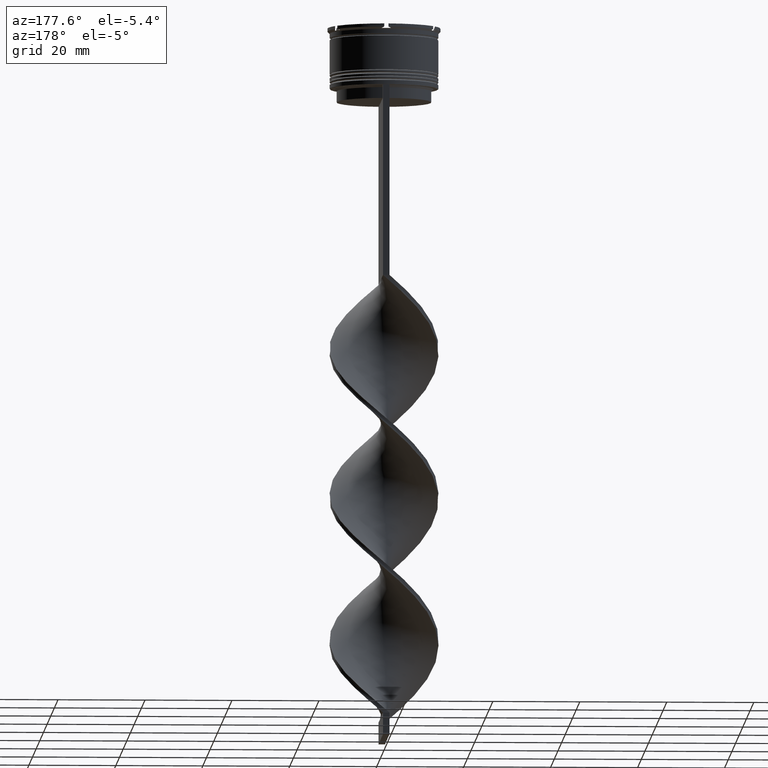
[diagram: clean part render]
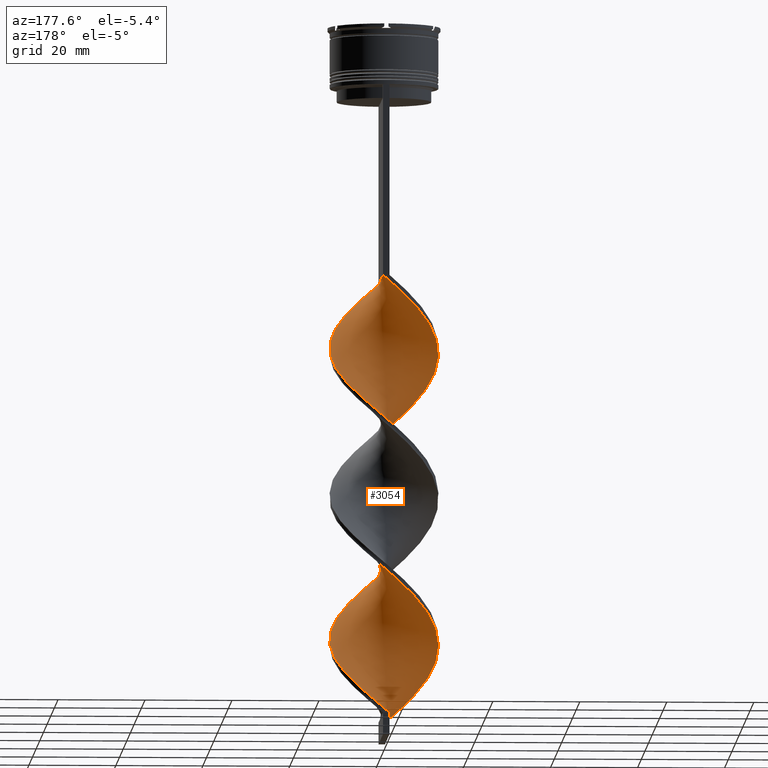
[diagram: same view with one face highlighted and labeled with its STEP entity id]
A machine part, auxiliary view. The second image highlights one B-rep face of the part: STEP entity #3054.
In plain terms, the highlighted face is a freeform B-spline surface patch.
Its self-contained STEP definition (entity closure, byte-faithful):
#9 = CARTESIAN_POINT ( 'NONE',  ( -1.865285434671644094, -12.38277877728589083, -123.0888888888888886 ) ) ;
#14 = CARTESIAN_POINT ( 'NONE',  ( 12.13740119476139867, -3.350863215071115953, -106.2555555555555742 ) ) ;
#15 = CARTESIAN_POINT ( 'NONE',  ( 12.13740119476140045, 3.350863215071107515, -77.07777777777778283 ) ) ;
#36 = CARTESIAN_POINT ( 'NONE',  ( 11.65644370790820972, 4.576004816908207928, -78.20000000000000284 ) ) ;
#39 = CARTESIAN_POINT ( 'NONE',  ( -10.61168328023406637, -6.777681757703948762, -148.8999999999999773 ) ) ;
#40 = CARTESIAN_POINT ( 'NONE',  ( 4.601210730723736653, -11.72065065856775767, -61.36666666666666003 ) ) ;
#51 = CARTESIAN_POINT ( 'NONE',  ( 0.7500000000000002220, -12.50000000000000000, -58.00000000000000000 ) ) ;
#56 = CARTESIAN_POINT ( 'NONE',  ( -6.937523532635169410, 10.50788081788356365, -97.27777777777778567 ) ) ;
#60 = CARTESIAN_POINT ( 'NONE',  ( 7.954078399437126023, -9.671873490467488566, -64.73333333333333428 ) ) ;
#66 = CARTESIAN_POINT ( 'NONE',  ( -11.65644370790820794, 4.576004816908208817, -71.46666666666668277 ) ) ;
#76 = CARTESIAN_POINT ( 'NONE',  ( 5.631329961908789983, 11.26201202755619768, -86.05555555555557135 ) ) ;
#88 = CARTESIAN_POINT ( 'NONE',  ( -12.11996919947063311, -3.149420042465476577, -78.20000000000000284 ) ) ;
#105 = CARTESIAN_POINT ( 'NONE',  ( -6.937523532635174739, -10.50788081788355832, -153.3888888888889142 ) ) ;
#106 = CARTESIAN_POINT ( 'NONE',  ( -0.7499999999999986677, 12.50000000000000000, -159.0000000000000000 ) ) ;
#125 = CARTESIAN_POINT ( 'NONE',  ( 5.769367131679453031, -11.11426573822566155, -129.8222222222222229 ) ) ;
#131 = CARTESIAN_POINT ( 'NONE',  ( -12.56885349454395495, 0.7541312096726383585, -74.83333333333334281 ) ) ;
#142 = CARTESIAN_POINT ( 'NONE',  ( -7.849775853840630369, -9.845090710256188871, -117.4777777777777885 ) ) ;
#149 = CARTESIAN_POINT ( 'NONE',  ( -0.7500000000000017764, -12.50000000000000000, -159.0000000000000000 ) ) ;
#155 = CARTESIAN_POINT ( 'NONE',  ( -1.865285434671636988, 12.38277877728589260, -60.24444444444444713 ) ) ;
#168 = CARTESIAN_POINT ( 'NONE',  ( 9.725148873555948370, 7.997891686931350108, -148.8999999999999773 ) ) ;
#173 = EDGE_CURVE ( 'NONE', #568, #2647, #1898, .T. ) ;
#225 = CARTESIAN_POINT ( 'NONE',  ( -12.45098658456435992, -1.875559948311561920, -144.4111111111111541 ) ) ;
#244 = CARTESIAN_POINT ( 'NONE',  ( -5.769367131679456584, -11.11426573822565977, -154.5111111111111200 ) ) ;
#248 = CARTESIAN_POINT ( 'NONE',  ( -7.849775853840621487, 9.845090710256194200, -65.85555555555555429 ) ) ;
#260 = B_SPLINE_CURVE_WITH_KNOTS ( 'NONE', 3,
 ( #323, #1896, #4128, #3509 ),
 .UNSPECIFIED., .F., .F.,
 ( 4, 4 ),
 ( 0.000000000000000000, 1.000000000000000000 ),
 .UNSPECIFIED. ) ;
#263 = CARTESIAN_POINT ( 'NONE',  ( 4.399048945215547235, -11.72437070283936400, -96.15555555555556566 ) ) ;
#266 = CARTESIAN_POINT ( 'NONE',  ( 5.769367131679463689, 11.11426573822565622, -120.8444444444444485 ) ) ;
#284 = CARTESIAN_POINT ( 'NONE',  ( -11.17548622105502254, 5.801146418745307898, -137.6777777777777487 ) ) ;
#287 = VECTOR ( 'NONE', #2635, 1000.000000000000000 ) ;
#289 = CARTESIAN_POINT ( 'NONE',  ( -9.725148873555948370, 7.997891686931351884, -68.10000000000000853 ) ) ;
#312 = CARTESIAN_POINT ( 'NONE',  ( -12.45098658456436169, 1.875559948311569691, -106.2555555555555742 ) ) ;
#315 = CARTESIAN_POINT ( 'NONE',  ( -5.631329961908784654, 11.26201202755620479, -63.61111111111112137 ) ) ;
#316 = CARTESIAN_POINT ( 'NONE',  ( -4.601210730723734876, 11.72065065856775945, -95.03333333333331723 ) ) ;
#323 = CARTESIAN_POINT ( 'NONE',  ( -0.7500000000000017764, -12.50000000000000000, -159.0000000000000000 ) ) ;
#329 = CARTESIAN_POINT ( 'NONE',  ( 7.849775853840625039, 9.845090710256194200, -83.81111111111111711 ) ) ;
#333 = CARTESIAN_POINT ( 'NONE',  ( -7.849775853840621487, 9.845090710256194200, -133.1888888888889255 ) ) ;
#334 = CARTESIAN_POINT ( 'NONE',  ( 12.11996919947063134, -3.149420042465478353, -71.46666666666668277 ) ) ;
#349 = CARTESIAN_POINT ( 'NONE',  ( 7.954078399437126023, -9.671873490467488566, -132.0666666666666629 ) ) ;
#354 = CARTESIAN_POINT ( 'NONE',  ( -12.45098658456435992, -1.875559948311561920, -144.4111111111111256 ) ) ;
#373 = CARTESIAN_POINT ( 'NONE',  ( 10.61168328023406815, -6.777681757703950538, -135.4333333333333371 ) ) ;
#376 = CARTESIAN_POINT ( 'NONE',  ( -7.954078399437126912, -9.671873490467486789, -152.2666666666666799 ) ) ;
#377 = CARTESIAN_POINT ( 'NONE',  ( 11.65644370790820972, 4.576004816908207928, -78.20000000000000284 ) ) ;
#393 = CARTESIAN_POINT ( 'NONE',  ( 4.399048945215554340, 11.72437070283936045, -87.17777777777779136 ) ) ;
#396 = CARTESIAN_POINT ( 'NONE',  ( -11.78895181437690276, -4.423280136619389680, -146.6555555555555657 ) ) ;
#397 = CARTESIAN_POINT ( 'NONE',  ( 11.20031754730548279, -5.600480947161672773, -69.22222222222222854 ) ) ;
#402 = CARTESIAN_POINT ( 'NONE',  ( -6.937523532635175627, -10.50788081788355832, -86.05555555555557135 ) ) ;
#414 = CARTESIAN_POINT ( 'NONE',  ( -5.769367131679456584, -11.11426573822565977, -154.5111111111111200 ) ) ;
#415 = CARTESIAN_POINT ( 'NONE',  ( -6.740552907874707067, -10.55355136890619860, -118.6000000000000085 ) ) ;
#448 = CARTESIAN_POINT ( 'NONE',  ( -9.725148873555946594, 7.997891686931353661, -68.10000000000002274 ) ) ;
#457 = EDGE_CURVE ( 'NONE', #2647, #3414, #3603, .T. ) ;
#461 = CARTESIAN_POINT ( 'NONE',  ( 6.937523532635171186, -10.50788081788356187, -130.9444444444444571 ) ) ;
#467 = CARTESIAN_POINT ( 'NONE',  ( 11.78895181437690454, 4.423280136619385239, -112.9888888888888943 ) ) ;
#480 = CARTESIAN_POINT ( 'NONE',  ( 10.45031754730548457, 6.899519052838327227, -147.7777777777777715 ) ) ;
#487 = CARTESIAN_POINT ( 'NONE',  ( -7.954078399437126912, -9.671873490467486789, -152.2666666666666799 ) ) ;
#506 = CARTESIAN_POINT ( 'NONE',  ( -10.45031754730548812, -6.899519052838321009, -114.1111111111111285 ) ) ;
#515 = ORIENTED_EDGE ( 'NONE', *, *, #3453, .F. ) ;
#563 = CARTESIAN_POINT ( 'NONE',  ( -12.35312734465267681, 2.052497212371875879, -141.0444444444444514 ) ) ;
#568 = VERTEX_POINT ( 'NONE', #2124 ) ;
#570 = CARTESIAN_POINT ( 'NONE',  ( -12.13740119476139867, 3.350863215071111512, -72.58888888888890278 ) ) ;
#584 = CARTESIAN_POINT ( 'NONE',  ( -6.937523532635175627, -10.50788081788355832, -153.3888888888889142 ) ) ;
#589 = CARTESIAN_POINT ( 'NONE',  ( -10.45031754730548279, 6.899519052838331667, -69.22222222222222854 ) ) ;
#602 = CARTESIAN_POINT ( 'NONE',  ( 12.45098658456436169, 1.875559948311554370, -110.7444444444444542 ) ) ;
#605 = CARTESIAN_POINT ( 'NONE',  ( 1.865285434671633880, -12.38277877728589260, -93.91111111111111143 ) ) ;
#624 = CARTESIAN_POINT ( 'NONE',  ( 12.35312734465267859, 2.052497212371872326, -75.95555555555554861 ) ) ;
#628 = CARTESIAN_POINT ( 'NONE',  ( -9.791158273236575837, -7.806773960377678456, -82.68888888888889710 ) ) ;
#630 = CARTESIAN_POINT ( 'NONE',  ( -11.20031754730548101, 5.600480947161677214, -102.8888888888888857 ) ) ;
#647 = CARTESIAN_POINT ( 'NONE',  ( -3.166767928522322251, -12.18672937812252499, -121.9666666666666544 ) ) ;
#650 = CARTESIAN_POINT ( 'NONE',  ( -7.954078399437126912, -9.671873490467486789, -84.93333333333333712 ) ) ;
#665 = CARTESIAN_POINT ( 'NONE',  ( -10.61168328023406637, 6.777681757703952314, -101.7666666666666515 ) ) ;
#670 = CARTESIAN_POINT ( 'NONE',  ( 6.937523532635171186, -10.50788081788356187, -63.61111111111112137 ) ) ;
#685 = CARTESIAN_POINT ( 'NONE',  ( -11.65644370790820972, -4.576004816908206152, -111.8666666666666742 ) ) ;
#690 = CARTESIAN_POINT ( 'NONE',  ( 9.791158273236570508, -7.806773960377682009, -66.97777777777777430 ) ) ;
#700 = CARTESIAN_POINT ( 'NONE',  ( 0.7500000000000002220, 12.50000000000000000, -58.00000000000000000 ) ) ;
#711 = CARTESIAN_POINT ( 'NONE',  ( -9.791158273236570508, 7.806773960377685562, -100.6444444444444599 ) ) ;
#716 = CARTESIAN_POINT ( 'NONE',  ( -3.332506835772342857, 12.07091124105925317, -93.91111111111111143 ) ) ;
#722 = CARTESIAN_POINT ( 'NONE',  ( -11.20031754730548457, -5.600480947161668333, -80.44444444444445708 ) ) ;
#730 = CARTESIAN_POINT ( 'NONE',  ( 4.399048945215554340, 11.72437070283936045, -154.5111111111111200 ) ) ;
#733 = CARTESIAN_POINT ( 'NONE',  ( -11.65644370790820794, 4.576004816908208817, -138.8000000000000114 ) ) ;
#734 = CARTESIAN_POINT ( 'NONE',  ( 5.631329961908789983, 11.26201202755619946, -153.3888888888889142 ) ) ;
#749 = CARTESIAN_POINT ( 'NONE',  ( -0.7499999999999986677, 12.50000000000000000, -159.0000000000000000 ) ) ;
#752 = CARTESIAN_POINT ( 'NONE',  ( 12.11996919947063134, -3.149420042465478353, -138.8000000000000114 ) ) ;
#761 = CARTESIAN_POINT ( 'NONE',  ( 0.7500000000000002220, 12.50000000000000000, -58.00000000000000000 ) ) ;
#778 = CARTESIAN_POINT ( 'NONE',  ( 4.601210730723736653, -11.72065065856775767, -128.7000000000000171 ) ) ;
#793 = CARTESIAN_POINT ( 'NONE',  ( 9.725148873555946594, 7.997891686931350996, -148.8999999999999488 ) ) ;
#803 = CARTESIAN_POINT ( 'NONE',  ( 0.7500000000000002220, 12.50000000000000000, -125.3333333333333570 ) ) ;
#817 = CARTESIAN_POINT ( 'NONE',  ( 7.849775853840625039, 9.845090710256192423, -151.1444444444444457 ) ) ;
#874 = CARTESIAN_POINT ( 'NONE',  ( 11.20031754730548812, 5.600480947161662115, -114.1111111111111285 ) ) ;
#877 = CARTESIAN_POINT ( 'NONE',  ( -2.063802940820959275, -12.42117182355074334, -90.54444444444445139 ) ) ;
#897 = CARTESIAN_POINT ( 'NONE',  ( 2.063802940820966825, 12.42117182355074334, -124.2111111111111370 ) ) ;
#902 = CARTESIAN_POINT ( 'NONE',  ( 11.20031754730548812, 5.600480947161662115, -114.1111111111111285 ) ) ;
#921 = CARTESIAN_POINT ( 'NONE',  ( -4.399048945215550788, 11.72437070283936222, -129.8222222222222229 ) ) ;
#924 = CARTESIAN_POINT ( 'NONE',  ( -0.7500000000000017764, -12.50000000000000000, -91.66666666666667140 ) ) ;
#939 = CARTESIAN_POINT ( 'NONE',  ( -10.45031754730548279, 6.899519052838331667, -136.5555555555555713 ) ) ;
#943 = CARTESIAN_POINT ( 'NONE',  ( -11.20031754730548457, -5.600480947161668333, -80.44444444444445708 ) ) ;
#944 = CARTESIAN_POINT ( 'NONE',  ( -0.7499999999999986677, 12.50000000000000000, -91.66666666666667140 ) ) ;
#959 = CARTESIAN_POINT ( 'NONE',  ( -4.399048945215561446, -11.72437070283935689, -120.8444444444444485 ) ) ;
#964 = CARTESIAN_POINT ( 'NONE',  ( 9.725148873555946594, -7.997891686931353661, -101.7666666666666515 ) ) ;
#966 = CARTESIAN_POINT ( 'NONE',  ( 10.45031754730548457, 6.899519052838327227, -80.44444444444445708 ) ) ;
#982 = CARTESIAN_POINT ( 'NONE',  ( 9.725148873555946594, 7.997891686931350996, -81.56666666666664867 ) ) ;
#985 = CARTESIAN_POINT ( 'NONE',  ( -12.56885349454395495, 0.7541312096726383585, -142.1666666666666856 ) ) ;
#986 = CARTESIAN_POINT ( 'NONE',  ( -12.56885349454395495, -0.7541312096726352499, -108.5000000000000000 ) ) ;
#995 = CARTESIAN_POINT ( 'NONE',  ( -0.7500000000000017764, -12.50000000000000000, -159.0000000000000000 ) ) ;
#1003 = CARTESIAN_POINT ( 'NONE',  ( -0.7499999999999986677, 12.50000000000000000, -91.66666666666667140 ) ) ;
#1007 = CARTESIAN_POINT ( 'NONE',  ( 11.78895181437690276, -4.423280136619393232, -70.34444444444444855 ) ) ;
#1022 = CARTESIAN_POINT ( 'NONE',  ( -2.063802940820951726, 12.42117182355074689, -92.78888888888889142 ) ) ;
#1028 = CARTESIAN_POINT ( 'NONE',  ( 1.865285434671642317, 12.38277877728589083, -89.42222222222223138 ) ) ;
#1037 = CARTESIAN_POINT ( 'NONE',  ( -9.791158273236575837, -7.806773960377678456, -82.68888888888889710 ) ) ;
#1047 = CARTESIAN_POINT ( 'NONE',  ( 12.35312734465267859, 2.052497212371872326, -143.2888888888889198 ) ) ;
#1096 = CARTESIAN_POINT ( 'NONE',  ( -12.45098658456435992, -1.875559948311561920, -77.07777777777778283 ) ) ;
#1119 = CARTESIAN_POINT ( 'NONE',  ( -3.166767928522319142, 12.18672937812252499, -128.6999999999999886 ) ) ;
#1129 = CARTESIAN_POINT ( 'NONE',  ( 1.865285434671642317, 12.38277877728589083, -156.7555555555555600 ) ) ;
#1133 = CARTESIAN_POINT ( 'NONE',  ( -1.865285434671644094, -12.38277877728589083, -123.0888888888888886 ) ) ;
#1185 = CARTESIAN_POINT ( 'NONE',  ( 6.937523532635172074, -10.50788081788356187, -63.61111111111111427 ) ) ;
#1201 = CARTESIAN_POINT ( 'NONE',  ( -4.601210730723739317, -11.72065065856775945, -155.6333333333333258 ) ) ;
#1204 = CARTESIAN_POINT ( 'NONE',  ( 12.35312734465267503, -2.052497212371882984, -107.3777777777777942 ) ) ;
#1229 = CARTESIAN_POINT ( 'NONE',  ( 10.61168328023406993, 6.777681757703947873, -115.2333333333333343 ) ) ;
#1234 = CARTESIAN_POINT ( 'NONE',  ( -0.5638029408209555005, 12.57882817644925844, -126.4555555555555770 ) ) ;
#1249 = CARTESIAN_POINT ( 'NONE',  ( -1.865285434671636988, 12.38277877728589260, -127.5777777777777828 ) ) ;
#1253 = CARTESIAN_POINT ( 'NONE',  ( -4.399048945215550788, 11.72437070283936222, -62.48888888888889426 ) ) ;
#1254 = CARTESIAN_POINT ( 'NONE',  ( -7.954078399437124247, 9.671873490467490342, -98.40000000000001990 ) ) ;
#1268 = CARTESIAN_POINT ( 'NONE',  ( -5.631329961908790871, -11.26201202755619768, -119.7222222222222143 ) ) ;
#1272 = CARTESIAN_POINT ( 'NONE',  ( 9.791158273236577614, 7.806773960377676680, -116.3555555555555685 ) ) ;
#1289 = CARTESIAN_POINT ( 'NONE',  ( 0.7500000000000002220, -12.50000000000000000, -125.3333333333333570 ) ) ;
#1294 = CARTESIAN_POINT ( 'NONE',  ( -12.35312734465267681, 2.052497212371875879, -73.71111111111112280 ) ) ;
#1296 = CARTESIAN_POINT ( 'NONE',  ( 6.740552907874705291, 10.55355136890619860, -84.93333333333333712 ) ) ;
#1314 = CARTESIAN_POINT ( 'NONE',  ( 12.13740119476140045, 3.350863215071107515, -77.07777777777778283 ) ) ;
#1317 = CARTESIAN_POINT ( 'NONE',  ( -4.601210730723738429, -11.72065065856775767, -155.6333333333333542 ) ) ;
#1319 = CARTESIAN_POINT ( 'NONE',  ( 8.970633266239079973, -8.835866163051415256, -65.85555555555555429 ) ) ;
#1335 = CARTESIAN_POINT ( 'NONE',  ( -12.11996919947063134, 3.149420042465479241, -105.1333333333333400 ) ) ;
#1339 = CARTESIAN_POINT ( 'NONE',  ( 3.166767928522320474, 12.18672937812252322, -88.29999999999998295 ) ) ;
#1345 = CARTESIAN_POINT ( 'NONE',  ( -12.35312734465267681, 2.052497212371875879, -73.71111111111112280 ) ) ;
#1356 = CARTESIAN_POINT ( 'NONE',  ( -3.332506835772342857, 12.07091124105925317, -93.91111111111111143 ) ) ;
#1370 = CARTESIAN_POINT ( 'NONE',  ( 1.865285434671633880, -12.38277877728589260, -93.91111111111111143 ) ) ;
#1383 = CARTESIAN_POINT ( 'NONE',  ( -12.13740119476139867, 3.350863215071111512, -139.9222222222222172 ) ) ;
#1384 = CARTESIAN_POINT ( 'NONE',  ( 3.332506835772345966, -12.07091124105925317, -127.5777777777777828 ) ) ;
#1402 = CARTESIAN_POINT ( 'NONE',  ( 11.65644370790820972, 4.576004816908207928, -145.5333333333333599 ) ) ;
#1409 = CARTESIAN_POINT ( 'NONE',  ( -1.865285434671636988, 12.38277877728589260, -60.24444444444444713 ) ) ;
#1421 = CARTESIAN_POINT ( 'NONE',  ( 2.063802940820955723, -12.42117182355074334, -126.4555555555555770 ) ) ;
#1428 = CARTESIAN_POINT ( 'NONE',  ( 0.7500000000000002220, -12.50000000000000000, -58.00000000000000000 ) ) ;
#1435 = CARTESIAN_POINT ( 'NONE',  ( -3.166767928522319142, 12.18672937812252322, -61.36666666666666003 ) ) ;
#1447 = CARTESIAN_POINT ( 'NONE',  ( 8.787462363698287149, 8.921491198593770378, -150.0222222222222115 ) ) ;
#1461 = CARTESIAN_POINT ( 'NONE',  ( 5.631329961908789983, 11.26201202755619768, -153.3888888888889142 ) ) ;
#1502 = CARTESIAN_POINT ( 'NONE',  ( 4.601210730723737541, -11.72065065856775945, -61.36666666666666003 ) ) ;
#1518 = CARTESIAN_POINT ( 'NONE',  ( -11.65644370790820794, 4.576004816908208817, -138.8000000000000114 ) ) ;
#1523 = CARTESIAN_POINT ( 'NONE',  ( -12.45098658456435992, -1.875559948311561920, -77.07777777777778283 ) ) ;
#1538 =( BOUNDED_CURVE ( )  B_SPLINE_CURVE ( 2, ( #1913, #3561, #4141, #40, #1611, #670, #60, #1319, #690, #1934, #397, #1007, #334, #1980, #3895, #3252, #3810, #15, #377, #3189, #966, #2963, #3208, #3270, #1296, #1653, #2585, #1339, #1028, #3586, #944, #3854, #716, #316, #2250, #1633, #1254, #2224, #3496, #1954, #630, #2561, #3523, #2921, #3226, #986, #2271, #3541, #2604, #3874, #506, #2105, #2424, #142, #415, #1783, #1738, #3046, #1133, #2650, #3336, #1421, #1384, #778, #125, #461, #2670, #2356, #3291, #3685, #2711, #3625, #752, #3648, #3922, #3009, #2044, #3317, #1402, #1694, #480, #168, #1447, #817, #3027, #734, #3376, #2989, #2688, #4003, #106 ),
 .UNSPECIFIED., .F., .T. ) 
 B_SPLINE_CURVE_WITH_KNOTS ( ( 3, 2, 2, 2, 2, 2, 2, 2, 2, 2, 2, 2, 2, 2, 2, 2, 2, 2, 2, 2, 2, 2, 2, 2, 2, 2, 2, 2, 2, 2, 2, 2, 2, 2, 2, 2, 2, 2, 2, 2, 2, 2, 2, 2, 2, 3 ),
 ( 0.000000000000000000, 0.01666666666666666644, 0.03333333333333333287, 0.05000000000000000971, 0.06666666666666666574, 0.08333333333333332871, 0.1000000000000000194, 0.1166666666666666546, 0.1333333333333333315, 0.1499999999999999944, 0.1666666666666666574, 0.1833333333333333204, 0.2000000000000000389, 0.2166666666666666741, 0.2333333333333333093, 0.2500000000000000000, 0.2666666666666666630, 0.2833333333333333259, 0.2999999999999999889, 0.3166666666666666519, 0.3333333333333333148, 0.3499999999999999223, 0.3666666666666666408, 0.3833333333333333592, 0.4000000000000000777, 0.4166666666666666852, 0.4333333333333333481, 0.4500000000000000111, 0.4666666666666666186, 0.4833333333333333370, 0.5000000000000000000, 0.5166666666666667185, 0.5333333333333333259, 0.5500000000000000444, 0.5666666666666666519, 0.5833333333333333703, 0.5999999999999999778, 0.6166666666666666963, 0.6333333333333333037, 0.6500000000000000222, 0.6666666666666666297, 0.6833333333333332371, 0.6999999999999998446, 0.7166666666666666741, 0.7333333333333332815, 0.7500000000000000000 ),
 .UNSPECIFIED. ) 
 CURVE ( )  GEOMETRIC_REPRESENTATION_ITEM ( )  RATIONAL_B_SPLINE_CURVE ( ( 1.000000000000000000, 0.9945218953682732899, 1.000000000000000000, 0.9945218953682732899, 1.000000000000000000, 0.9945218953682732899, 1.000000000000000000, 0.9945218953682732899, 1.000000000000000000, 0.9945218953682732899, 1.000000000000000000, 0.9945218953682732899, 1.000000000000000000, 0.9945218953682732899, 1.000000000000000000, 0.9945218953682732899, 1.000000000000000000, 0.9945218953682732899, 1.000000000000000000, 0.9945218953682732899, 1.000000000000000000, 0.9945218953682732899, 1.000000000000000000, 0.9945218953682732899, 1.000000000000000000, 0.9945218953682732899, 1.000000000000000000, 0.9945218953682732899, 1.000000000000000000, 0.9945218953682732899, 1.000000000000000000, 0.9945218953682732899, 1.000000000000000000, 0.9945218953682732899, 1.000000000000000000, 0.9945218953682732899, 1.000000000000000000, 0.9945218953682732899, 1.000000000000000000, 0.9945218953682732899, 1.000000000000000000, 0.9945218953682732899, 1.000000000000000000, 0.9945218953682732899, 1.000000000000000000, 0.9945218953682732899, 1.000000000000000000, 0.9945218953682732899, 1.000000000000000000, 0.9945218953682732899, 1.000000000000000000, 0.9945218953682732899, 1.000000000000000000, 0.9945218953682732899, 1.000000000000000000, 0.9945218953682732899, 1.000000000000000000, 0.9945218953682732899, 1.000000000000000000, 0.9945218953682732899, 1.000000000000000000, 0.9945218953682732899, 1.000000000000000000, 0.9945218953682732899, 1.000000000000000000, 0.9945218953682732899, 1.000000000000000000, 0.9945218953682732899, 1.000000000000000000, 0.9945218953682732899, 1.000000000000000000, 0.9945218953682732899, 1.000000000000000000, 0.9945218953682732899, 1.000000000000000000, 0.9945218953682732899, 1.000000000000000000, 0.9945218953682732899, 1.000000000000000000, 0.9945218953682732899, 1.000000000000000000, 0.9945218953682732899, 1.000000000000000000, 0.9945218953682732899, 1.000000000000000000, 0.9945218953682732899, 1.000000000000000000, 0.9945218953682732899, 1.000000000000000000, 0.9945218953682732899, 1.000000000000000000 ) ) 
 REPRESENTATION_ITEM ( '' )  );
#1541 = CARTESIAN_POINT ( 'NONE',  ( 12.11996919947063311, 3.149420042465475245, -111.8666666666666742 ) ) ;
#1544 = CARTESIAN_POINT ( 'NONE',  ( 4.601210730723740205, 11.72065065856775767, -121.9666666666666544 ) ) ;
#1565 = CARTESIAN_POINT ( 'NONE',  ( -10.61168328023406815, -6.777681757703948762, -148.8999999999999488 ) ) ;
#1570 = CARTESIAN_POINT ( 'NONE',  ( 12.56885349454395495, -0.7541312096726398018, -108.5000000000000000 ) ) ;
#1588 = CARTESIAN_POINT ( 'NONE',  ( -9.725148873555948370, -7.997891686931350996, -115.2333333333333343 ) ) ;
#1591 = CARTESIAN_POINT ( 'NONE',  ( 0.7500000000000002220, 12.50000000000000000, -125.3333333333333570 ) ) ;
#1607 = CARTESIAN_POINT ( 'NONE',  ( 12.11996919947063134, -3.149420042465478353, -71.46666666666668277 ) ) ;
#1610 = CARTESIAN_POINT ( 'NONE',  ( 8.787462363698281820, -8.921491198593777483, -100.6444444444444599 ) ) ;
#1611 = CARTESIAN_POINT ( 'NONE',  ( 5.769367131679453031, -11.11426573822566155, -62.48888888888889426 ) ) ;
#1625 = CARTESIAN_POINT ( 'NONE',  ( 8.970633266239079973, -8.835866163051415256, -133.1888888888889255 ) ) ;
#1633 = CARTESIAN_POINT ( 'NONE',  ( -6.937523532635168522, 10.50788081788356365, -97.27777777777779988 ) ) ;
#1649 = CARTESIAN_POINT ( 'NONE',  ( 11.20031754730548279, -5.600480947161672773, -136.5555555555555713 ) ) ;
#1653 = CARTESIAN_POINT ( 'NONE',  ( 5.631329961908789983, 11.26201202755619946, -86.05555555555557135 ) ) ;
#1669 = CARTESIAN_POINT ( 'NONE',  ( 8.787462363698287149, 8.921491198593770378, -82.68888888888889710 ) ) ;
#1679 = CARTESIAN_POINT ( 'NONE',  ( -0.7500000000000017764, -12.50000000000000000, -91.66666666666667140 ) ) ;
#1689 = CARTESIAN_POINT ( 'NONE',  ( 12.11996919947063134, -3.149420042465478353, -138.8000000000000114 ) ) ;
#1693 = CARTESIAN_POINT ( 'NONE',  ( -2.063802940820959275, -12.42117182355074334, -157.8777777777777942 ) ) ;
#1694 = CARTESIAN_POINT ( 'NONE',  ( 11.17548622105502076, 5.801146418745305233, -146.6555555555555657 ) ) ;
#1733 = CARTESIAN_POINT ( 'NONE',  ( 12.50992003955415655, -0.5607143693194658329, -141.0444444444444514 ) ) ;
#1738 = CARTESIAN_POINT ( 'NONE',  ( -4.399048945215561446, -11.72437070283935689, -120.8444444444444485 ) ) ;
#1744 = CARTESIAN_POINT ( 'NONE',  ( -8.787462363698281820, 8.921491198593773930, -134.3111111111111313 ) ) ;
#1783 = CARTESIAN_POINT ( 'NONE',  ( -5.631329961908790871, -11.26201202755619946, -119.7222222222222143 ) ) ;
#1791 = EDGE_LOOP ( 'NONE', ( #2640, #3057, #515, #3813 ) ) ;
#1821 = CARTESIAN_POINT ( 'NONE',  ( 3.332506835772345966, -12.07091124105925317, -60.24444444444444713 ) ) ;
#1844 = CARTESIAN_POINT ( 'NONE',  ( -12.11996919947063311, -3.149420042465476577, -145.5333333333333599 ) ) ;
#1848 = CARTESIAN_POINT ( 'NONE',  ( -10.61168328023406637, -6.777681757703948762, -81.56666666666666288 ) ) ;
#1862 = CARTESIAN_POINT ( 'NONE',  ( -2.063802940820959275, -12.42117182355074334, -157.8777777777777942 ) ) ;
#1866 = CARTESIAN_POINT ( 'NONE',  ( 10.61168328023406815, 6.777681757703947873, -115.2333333333333343 ) ) ;
#1881 = CARTESIAN_POINT ( 'NONE',  ( 3.332506835772352627, 12.07091124105925140, -123.0888888888888886 ) ) ;
#1884 = CARTESIAN_POINT ( 'NONE',  ( 10.45031754730548101, -6.899519052838334332, -102.8888888888888857 ) ) ;
#1896 = CARTESIAN_POINT ( 'NONE',  ( -0.7500000000000007772, -4.166666666666667851, -159.0000000000000000 ) ) ;
#1898 = LINE ( 'NONE', #51, #287 ) ;
#1907 = CARTESIAN_POINT ( 'NONE',  ( 0.5638029408209590532, 12.57882817644926021, -90.54444444444445139 ) ) ;
#1912 = CARTESIAN_POINT ( 'NONE',  ( 3.166767928522317810, -12.18672937812252499, -95.03333333333331723 ) ) ;
#1913 = CARTESIAN_POINT ( 'NONE',  ( 0.7500000000000002220, -12.50000000000000000, -58.00000000000000000 ) ) ;
#1930 = CARTESIAN_POINT ( 'NONE',  ( -8.970633266239076420, 8.835866163051417033, -99.52222222222223991 ) ) ;
#1933 = CARTESIAN_POINT ( 'NONE',  ( -4.399048945215550788, 11.72437070283936222, -129.8222222222222229 ) ) ;
#1934 = CARTESIAN_POINT ( 'NONE',  ( 10.61168328023406637, -6.777681757703950538, -68.10000000000000853 ) ) ;
#1949 = CARTESIAN_POINT ( 'NONE',  ( 5.769367131679453031, -11.11426573822566155, -129.8222222222222229 ) ) ;
#1954 = CARTESIAN_POINT ( 'NONE',  ( -10.61168328023406460, 6.777681757703952314, -101.7666666666666515 ) ) ;
#1972 = CARTESIAN_POINT ( 'NONE',  ( -0.5638029408209662696, -12.57882817644926021, -124.2111111111111370 ) ) ;
#1980 = CARTESIAN_POINT ( 'NONE',  ( 12.45098658456436169, -1.875559948311565694, -72.58888888888890278 ) ) ;
#1989 = CARTESIAN_POINT ( 'NONE',  ( -0.5638029408209555005, 12.57882817644926021, -59.12222222222222712 ) ) ;
#1997 = CARTESIAN_POINT ( 'NONE',  ( -12.13740119476140222, -3.350863215071100853, -110.7444444444444542 ) ) ;
#2008 = CARTESIAN_POINT ( 'NONE',  ( -2.063802940820959275, -12.42117182355074334, -90.54444444444445139 ) ) ;
#2016 = CARTESIAN_POINT ( 'NONE',  ( 11.65644370790820972, 4.576004816908207928, -145.5333333333333599 ) ) ;
#2019 = CARTESIAN_POINT ( 'NONE',  ( -12.50992003955415832, -0.5607143693194613920, -143.2888888888889198 ) ) ;
#2027 = CARTESIAN_POINT ( 'NONE',  ( -10.45031754730548279, 6.899519052838331667, -69.22222222222222854 ) ) ;
#2035 =( BOUNDED_SURFACE ( )  B_SPLINE_SURFACE ( 1, 2, ( 
 ( #700, #1989, #1409, #2950, #2695, #3947, #3324, #3963, #3929, #448, #2027, #3258, #66, #2387, #1345, #131, #3656, #1096, #88, #2630, #722, #3903, #1037, #2657, #3276, #402, #3297, #2326, #3593, #2008, #1679, #2968, #1370, #2997, #263, #3673, #2182, #3740, #2804, #2203, #3454, #2826, #4053, #2538, #3138, #2476, #4093, #602, #1541, #467, #874, #1229, #3989, #3100, #3760, #2518, #3786, #3472, #1881, #897, #803, #3343, #1249, #1119, #921, #3805, #3158, #3122, #1744, #2159, #939, #284, #1518, #3432, #563, #4070, #2410, #225, #1844, #2092, #3033, #1565, #3362, #2853, #487, #584, #244, #1201, #4117, #1862, #149 ),
 ( #1428, #2721, #1821, #1502, #2788, #1185, #2492, #3870, #3203, #2643, #2891, #2959, #1607, #2267, #3492, #3266, #624, #1314, #36, #3916, #3519, #982, #1669, #329, #2220, #76, #393, #2287, #2556, #1907, #1003, #1022, #1356, #3185, #2600, #56, #2244, #1930, #711, #665, #3890, #3823, #1335, #312, #2938, #2916, #3556, #1997, #685, #2310, #2872, #1588, #4137, #3579, #2620, #1268, #959, #647, #9, #1972, #1289, #2579, #3850, #3537, #1949, #3222, #349, #1625, #3245, #373, #1649, #3622, #1689, #3937, #1733, #2039, #1047, #3601, #2016, #2749, #3664, #793, #2982, #3372, #2334, #1461, #730, #2082, #1129, #3023, #749 ) ),
 .UNSPECIFIED., .F., .F., .F. ) 
 B_SPLINE_SURFACE_WITH_KNOTS ( ( 2, 2 ),
 ( 3, 2, 2, 2, 2, 2, 2, 2, 2, 2, 2, 2, 2, 2, 2, 2, 2, 2, 2, 2, 2, 2, 2, 2, 2, 2, 2, 2, 2, 2, 2, 2, 2, 2, 2, 2, 2, 2, 2, 2, 2, 2, 2, 2, 2, 3 ),
 ( 0.000000000000000000, 1.000000000000000000 ),
 ( 0.000000000000000000, 0.01666666666666666644, 0.03333333333333333287, 0.05000000000000000278, 0.06666666666666666574, 0.08333333333333332871, 0.1000000000000000056, 0.1166666666666666685, 0.1333333333333333315, 0.1499999999999999944, 0.1666666666666666574, 0.1833333333333333204, 0.2000000000000000111, 0.2166666666666666741, 0.2333333333333333370, 0.2500000000000000000, 0.2666666666666666630, 0.2833333333333333259, 0.2999999999999999889, 0.3166666666666666519, 0.3333333333333333148, 0.3499999999999999778, 0.3666666666666666408, 0.3833333333333333592, 0.4000000000000000222, 0.4166666666666666852, 0.4333333333333333481, 0.4500000000000000111, 0.4666666666666666741, 0.4833333333333333370, 0.5000000000000000000, 0.5166666666666667185, 0.5333333333333333259, 0.5500000000000000444, 0.5666666666666666519, 0.5833333333333333703, 0.5999999999999999778, 0.6166666666666666963, 0.6333333333333333037, 0.6500000000000000222, 0.6666666666666666297, 0.6833333333333333481, 0.6999999999999999556, 0.7166666666666666741, 0.7333333333333332815, 0.7500000000000000000 ),
 .UNSPECIFIED. ) 
 GEOMETRIC_REPRESENTATION_ITEM ( )  RATIONAL_B_SPLINE_SURFACE ( (
 ( 1.000000000000000000, 0.9945218953682732899, 1.000000000000000000, 0.9945218953682732899, 1.000000000000000000, 0.9945218953682732899, 1.000000000000000000, 0.9945218953682732899, 1.000000000000000000, 0.9945218953682732899, 1.000000000000000000, 0.9945218953682732899, 1.000000000000000000, 0.9945218953682732899, 1.000000000000000000, 0.9945218953682732899, 1.000000000000000000, 0.9945218953682732899, 1.000000000000000000, 0.9945218953682732899, 1.000000000000000000, 0.9945218953682732899, 1.000000000000000000, 0.9945218953682732899, 1.000000000000000000, 0.9945218953682732899, 1.000000000000000000, 0.9945218953682732899, 1.000000000000000000, 0.9945218953682732899, 1.000000000000000000, 0.9945218953682732899, 1.000000000000000000, 0.9945218953682732899, 1.000000000000000000, 0.9945218953682732899, 1.000000000000000000, 0.9945218953682732899, 1.000000000000000000, 0.9945218953682732899, 1.000000000000000000, 0.9945218953682732899, 1.000000000000000000, 0.9945218953682732899, 1.000000000000000000, 0.9945218953682732899, 1.000000000000000000, 0.9945218953682732899, 1.000000000000000000, 0.9945218953682732899, 1.000000000000000000, 0.9945218953682732899, 1.000000000000000000, 0.9945218953682732899, 1.000000000000000000, 0.9945218953682732899, 1.000000000000000000, 0.9945218953682732899, 1.000000000000000000, 0.9945218953682732899, 1.000000000000000000, 0.9945218953682732899, 1.000000000000000000, 0.9945218953682732899, 1.000000000000000000, 0.9945218953682732899, 1.000000000000000000, 0.9945218953682732899, 1.000000000000000000, 0.9945218953682732899, 1.000000000000000000, 0.9945218953682732899, 1.000000000000000000, 0.9945218953682732899, 1.000000000000000000, 0.9945218953682732899, 1.000000000000000000, 0.9945218953682732899, 1.000000000000000000, 0.9945218953682732899, 1.000000000000000000, 0.9945218953682732899, 1.000000000000000000, 0.9945218953682732899, 1.000000000000000000, 0.9945218953682732899, 1.000000000000000000, 0.9945218953682732899, 1.000000000000000000, 0.9945218953682732899, 1.000000000000000000),
 ( 1.000000000000000000, 0.9945218953682732899, 1.000000000000000000, 0.9945218953682732899, 1.000000000000000000, 0.9945218953682732899, 1.000000000000000000, 0.9945218953682732899, 1.000000000000000000, 0.9945218953682732899, 1.000000000000000000, 0.9945218953682732899, 1.000000000000000000, 0.9945218953682732899, 1.000000000000000000, 0.9945218953682732899, 1.000000000000000000, 0.9945218953682732899, 1.000000000000000000, 0.9945218953682732899, 1.000000000000000000, 0.9945218953682732899, 1.000000000000000000, 0.9945218953682732899, 1.000000000000000000, 0.9945218953682732899, 1.000000000000000000, 0.9945218953682732899, 1.000000000000000000, 0.9945218953682732899, 1.000000000000000000, 0.9945218953682732899, 1.000000000000000000, 0.9945218953682732899, 1.000000000000000000, 0.9945218953682732899, 1.000000000000000000, 0.9945218953682732899, 1.000000000000000000, 0.9945218953682732899, 1.000000000000000000, 0.9945218953682732899, 1.000000000000000000, 0.9945218953682732899, 1.000000000000000000, 0.9945218953682732899, 1.000000000000000000, 0.9945218953682732899, 1.000000000000000000, 0.9945218953682732899, 1.000000000000000000, 0.9945218953682732899, 1.000000000000000000, 0.9945218953682732899, 1.000000000000000000, 0.9945218953682732899, 1.000000000000000000, 0.9945218953682732899, 1.000000000000000000, 0.9945218953682732899, 1.000000000000000000, 0.9945218953682732899, 1.000000000000000000, 0.9945218953682732899, 1.000000000000000000, 0.9945218953682732899, 1.000000000000000000, 0.9945218953682732899, 1.000000000000000000, 0.9945218953682732899, 1.000000000000000000, 0.9945218953682732899, 1.000000000000000000, 0.9945218953682732899, 1.000000000000000000, 0.9945218953682732899, 1.000000000000000000, 0.9945218953682732899, 1.000000000000000000, 0.9945218953682732899, 1.000000000000000000, 0.9945218953682732899, 1.000000000000000000, 0.9945218953682732899, 1.000000000000000000, 0.9945218953682732899, 1.000000000000000000, 0.9945218953682732899, 1.000000000000000000, 0.9945218953682732899, 1.000000000000000000) ) ) 
 REPRESENTATION_ITEM ( '' )  SURFACE ( )  );
#2039 = CARTESIAN_POINT ( 'NONE',  ( 12.56885349454395495, 0.7541312096726368042, -142.1666666666666856 ) ) ;
#2044 = CARTESIAN_POINT ( 'NONE',  ( 12.35312734465267859, 2.052497212371872326, -143.2888888888889198 ) ) ;
#2077 = CARTESIAN_POINT ( 'NONE',  ( 0.7500000000000002220, 12.50000000000000000, -58.00000000000000000 ) ) ;
#2082 = CARTESIAN_POINT ( 'NONE',  ( 3.166767928522320918, 12.18672937812252499, -155.6333333333333258 ) ) ;
#2092 = CARTESIAN_POINT ( 'NONE',  ( -11.78895181437690276, -4.423280136619389680, -146.6555555555555657 ) ) ;
#2105 = CARTESIAN_POINT ( 'NONE',  ( -9.725148873555948370, -7.997891686931350108, -115.2333333333333343 ) ) ;
#2124 = CARTESIAN_POINT ( 'NONE',  ( 0.7500000000000002220, -12.50000000000000000, -58.00000000000000000 ) ) ;
#2159 = CARTESIAN_POINT ( 'NONE',  ( -9.725148873555946594, 7.997891686931353661, -135.4333333333333371 ) ) ;
#2163 = CARTESIAN_POINT ( 'NONE',  ( -11.65644370790820794, 4.576004816908208817, -71.46666666666668277 ) ) ;
#2182 = CARTESIAN_POINT ( 'NONE',  ( 6.740552907874702626, -10.55355136890619860, -98.40000000000001990 ) ) ;
#2186 = CARTESIAN_POINT ( 'NONE',  ( -6.740552907874703514, 10.55355136890620038, -64.73333333333333428 ) ) ;
#2187 = CARTESIAN_POINT ( 'NONE',  ( -0.7499999999999986677, 12.50000000000000000, -159.0000000000000000 ) ) ;
#2203 = CARTESIAN_POINT ( 'NONE',  ( 9.725148873555944817, -7.997891686931354549, -101.7666666666666515 ) ) ;
#2207 = CARTESIAN_POINT ( 'NONE',  ( 7.954078399437128688, 9.671873490467486789, -118.6000000000000085 ) ) ;
#2220 = CARTESIAN_POINT ( 'NONE',  ( 6.740552907874705291, 10.55355136890619860, -84.93333333333333712 ) ) ;
#2223 = CARTESIAN_POINT ( 'NONE',  ( -12.56885349454395495, 0.7541312096726383585, -74.83333333333332860 ) ) ;
#2224 = CARTESIAN_POINT ( 'NONE',  ( -8.970633266239076420, 8.835866163051417033, -99.52222222222223991 ) ) ;
#2244 = CARTESIAN_POINT ( 'NONE',  ( -7.954078399437124247, 9.671873490467490342, -98.40000000000001990 ) ) ;
#2249 = CARTESIAN_POINT ( 'NONE',  ( -1.865285434671636988, 12.38277877728589260, -127.5777777777777828 ) ) ;
#2250 = CARTESIAN_POINT ( 'NONE',  ( -5.769367131679449479, 11.11426573822566333, -96.15555555555556566 ) ) ;
#2267 = CARTESIAN_POINT ( 'NONE',  ( 12.45098658456436169, -1.875559948311565917, -72.58888888888890278 ) ) ;
#2270 = CARTESIAN_POINT ( 'NONE',  ( -12.11996919947063311, -3.149420042465476577, -145.5333333333333599 ) ) ;
#2271 = CARTESIAN_POINT ( 'NONE',  ( -12.35312734465267859, -2.052497212371867885, -109.6222222222222342 ) ) ;
#2287 = CARTESIAN_POINT ( 'NONE',  ( 3.166767928522320918, 12.18672937812252499, -88.29999999999998295 ) ) ;
#2291 = CARTESIAN_POINT ( 'NONE',  ( -9.725148873555948370, 7.997891686931351884, -135.4333333333333371 ) ) ;
#2298 = FACE_OUTER_BOUND ( 'NONE', #1791, .T. ) ;
#2310 = CARTESIAN_POINT ( 'NONE',  ( -11.17548622105502432, -5.801146418745299904, -112.9888888888888943 ) ) ;
#2326 = CARTESIAN_POINT ( 'NONE',  ( -4.601210730723739317, -11.72065065856775945, -88.29999999999998295 ) ) ;
#2334 = CARTESIAN_POINT ( 'NONE',  ( 6.740552907874705291, 10.55355136890619860, -152.2666666666666799 ) ) ;
#2356 = CARTESIAN_POINT ( 'NONE',  ( 8.970633266239079973, -8.835866163051415256, -133.1888888888889255 ) ) ;
#2387 = CARTESIAN_POINT ( 'NONE',  ( -12.13740119476139867, 3.350863215071111512, -72.58888888888890278 ) ) ;
#2410 = CARTESIAN_POINT ( 'NONE',  ( -12.50992003955415832, -0.5607143693194613920, -143.2888888888889198 ) ) ;
#2424 = CARTESIAN_POINT ( 'NONE',  ( -8.787462363698288925, -8.921491198593770378, -116.3555555555555685 ) ) ;
#2476 = CARTESIAN_POINT ( 'NONE',  ( 12.56885349454395495, -0.7541312096726399128, -108.5000000000000000 ) ) ;
#2492 = CARTESIAN_POINT ( 'NONE',  ( 7.954078399437126023, -9.671873490467488566, -64.73333333333333428 ) ) ;
#2496 = CARTESIAN_POINT ( 'NONE',  ( -8.787462363698281820, 8.921491198593773930, -66.97777777777777430 ) ) ;
#2518 = CARTESIAN_POINT ( 'NONE',  ( 6.937523532635176515, 10.50788081788355832, -119.7222222222222143 ) ) ;
#2522 = CARTESIAN_POINT ( 'NONE',  ( -5.631329961908784654, 11.26201202755620479, -130.9444444444444571 ) ) ;
#2538 = CARTESIAN_POINT ( 'NONE',  ( 12.13740119476139867, -3.350863215071115953, -106.2555555555555742 ) ) ;
#2541 = CARTESIAN_POINT ( 'NONE',  ( -11.78895181437690276, -4.423280136619389680, -79.32222222222222285 ) ) ;
#2556 = CARTESIAN_POINT ( 'NONE',  ( 1.865285434671642317, 12.38277877728589083, -89.42222222222223138 ) ) ;
#2560 = CARTESIAN_POINT ( 'NONE',  ( 8.970633266239085302, 8.835866163051404598, -117.4777777777777885 ) ) ;
#2561 = CARTESIAN_POINT ( 'NONE',  ( -11.78895181437689743, 4.423280136619400338, -104.0111111111111057 ) ) ;
#2579 = CARTESIAN_POINT ( 'NONE',  ( 2.063802940820956167, -12.42117182355074334, -126.4555555555555628 ) ) ;
#2584 = CARTESIAN_POINT ( 'NONE',  ( -3.332506835772350851, -12.07091124105925140, -156.7555555555555600 ) ) ;
#2585 = CARTESIAN_POINT ( 'NONE',  ( 4.399048945215554340, 11.72437070283936045, -87.17777777777779136 ) ) ;
#2600 = CARTESIAN_POINT ( 'NONE',  ( -5.769367131679449479, 11.11426573822566333, -96.15555555555556566 ) ) ;
#2604 = CARTESIAN_POINT ( 'NONE',  ( -11.65644370790820972, -4.576004816908206152, -111.8666666666666742 ) ) ;
#2620 = CARTESIAN_POINT ( 'NONE',  ( -6.740552907874707067, -10.55355136890619860, -118.6000000000000085 ) ) ;
#2623 = CARTESIAN_POINT ( 'NONE',  ( -9.791158273236575837, -7.806773960377678456, -150.0222222222222115 ) ) ;
#2630 = CARTESIAN_POINT ( 'NONE',  ( -11.78895181437690276, -4.423280136619389680, -79.32222222222222285 ) ) ;
#2635 = DIRECTION ( 'NONE',  ( 0.000000000000000000, 1.000000000000000000, 0.000000000000000000 ) ) ;
#2640 = ORIENTED_EDGE ( 'NONE', *, *, #173, .F. ) ;
#2643 = CARTESIAN_POINT ( 'NONE',  ( 10.61168328023406815, -6.777681757703950538, -68.10000000000002274 ) ) ;
#2647 = VERTEX_POINT ( 'NONE', #761 ) ;
#2650 = CARTESIAN_POINT ( 'NONE',  ( -0.5638029408209662696, -12.57882817644925844, -124.2111111111111370 ) ) ;
#2657 = CARTESIAN_POINT ( 'NONE',  ( -8.970633266239079973, -8.835866163051411704, -83.81111111111111711 ) ) ;
#2670 = CARTESIAN_POINT ( 'NONE',  ( 7.954078399437126023, -9.671873490467488566, -132.0666666666666629 ) ) ;
#2688 = CARTESIAN_POINT ( 'NONE',  ( 1.865285434671642317, 12.38277877728589083, -156.7555555555555600 ) ) ;
#2695 = CARTESIAN_POINT ( 'NONE',  ( -4.399048945215550788, 11.72437070283936222, -62.48888888888889426 ) ) ;
#2711 = CARTESIAN_POINT ( 'NONE',  ( 11.20031754730548279, -5.600480947161672773, -136.5555555555555713 ) ) ;
#2721 = CARTESIAN_POINT ( 'NONE',  ( 2.063802940820956167, -12.42117182355074334, -59.12222222222222712 ) ) ;
#2749 = CARTESIAN_POINT ( 'NONE',  ( 11.17548622105502254, 5.801146418745304345, -146.6555555555555657 ) ) ;
#2788 = CARTESIAN_POINT ( 'NONE',  ( 5.769367131679453031, -11.11426573822566155, -62.48888888888889426 ) ) ;
#2804 = CARTESIAN_POINT ( 'NONE',  ( 8.787462363698281820, -8.921491198593777483, -100.6444444444444599 ) ) ;
#2807 = CARTESIAN_POINT ( 'NONE',  ( -12.11996919947063311, -3.149420042465476577, -78.20000000000000284 ) ) ;
#2826 = CARTESIAN_POINT ( 'NONE',  ( 11.17548622105501721, -5.801146418745314115, -104.0111111111111200 ) ) ;
#2829 = CARTESIAN_POINT ( 'NONE',  ( 2.063802940820966825, 12.42117182355074334, -124.2111111111111370 ) ) ;
#2853 = CARTESIAN_POINT ( 'NONE',  ( -8.970633266239079973, -8.835866163051411704, -151.1444444444444457 ) ) ;
#2857 = CARTESIAN_POINT ( 'NONE',  ( 3.332506835772352627, 12.07091124105925140, -123.0888888888888886 ) ) ;
#2872 = CARTESIAN_POINT ( 'NONE',  ( -10.45031754730548812, -6.899519052838321009, -114.1111111111111285 ) ) ;
#2876 = CARTESIAN_POINT ( 'NONE',  ( -8.970633266239079973, -8.835866163051411704, -83.81111111111111711 ) ) ;
#2891 = CARTESIAN_POINT ( 'NONE',  ( 11.20031754730548279, -5.600480947161672773, -69.22222222222222854 ) ) ;
#2895 = CARTESIAN_POINT ( 'NONE',  ( 0.5638029408209503934, -12.57882817644926199, -92.78888888888889142 ) ) ;
#2916 = CARTESIAN_POINT ( 'NONE',  ( -12.56885349454395495, -0.7541312096726353609, -108.5000000000000000 ) ) ;
#2921 = CARTESIAN_POINT ( 'NONE',  ( -12.45098658456436169, 1.875559948311569913, -106.2555555555555742 ) ) ;
#2938 = CARTESIAN_POINT ( 'NONE',  ( -12.50992003955415832, 0.5607143693194728273, -107.3777777777777942 ) ) ;
#2950 = CARTESIAN_POINT ( 'NONE',  ( -3.166767928522319142, 12.18672937812252499, -61.36666666666666003 ) ) ;
#2959 = CARTESIAN_POINT ( 'NONE',  ( 11.78895181437690276, -4.423280136619393232, -70.34444444444443434 ) ) ;
#2962 = CARTESIAN_POINT ( 'NONE',  ( -10.45031754730548279, 6.899519052838331667, -136.5555555555555713 ) ) ;
#2963 = CARTESIAN_POINT ( 'NONE',  ( 9.725148873555948370, 7.997891686931350108, -81.56666666666666288 ) ) ;
#2968 = CARTESIAN_POINT ( 'NONE',  ( 0.5638029408209505045, -12.57882817644926376, -92.78888888888889142 ) ) ;
#2982 = CARTESIAN_POINT ( 'NONE',  ( 8.787462363698287149, 8.921491198593770378, -150.0222222222222115 ) ) ;
#2989 = CARTESIAN_POINT ( 'NONE',  ( 3.166767928522320474, 12.18672937812252322, -155.6333333333333542 ) ) ;
#2997 = CARTESIAN_POINT ( 'NONE',  ( 3.166767928522317810, -12.18672937812252677, -95.03333333333331723 ) ) ;
#3009 = CARTESIAN_POINT ( 'NONE',  ( 12.56885349454395495, 0.7541312096726368042, -142.1666666666666856 ) ) ;
#3023 = CARTESIAN_POINT ( 'NONE',  ( 0.5638029408209590532, 12.57882817644926021, -157.8777777777777942 ) ) ;
#3027 = CARTESIAN_POINT ( 'NONE',  ( 6.740552907874705291, 10.55355136890619860, -152.2666666666666799 ) ) ;
#3033 = CARTESIAN_POINT ( 'NONE',  ( -11.20031754730548457, -5.600480947161668333, -147.7777777777777715 ) ) ;
#3046 = CARTESIAN_POINT ( 'NONE',  ( -3.166767928522322251, -12.18672937812252322, -121.9666666666666544 ) ) ;
#3054 = ADVANCED_FACE ( 'NONE', ( #2298 ), #2035, .T. ) ;
#3057 = ORIENTED_EDGE ( 'NONE', *, *, #4036, .T. ) ;
#3100 = CARTESIAN_POINT ( 'NONE',  ( 8.970633266239085302, 8.835866163051406375, -117.4777777777777885 ) ) ;
#3122 = CARTESIAN_POINT ( 'NONE',  ( -7.849775853840620599, 9.845090710256195976, -133.1888888888889255 ) ) ;
#3126 = CARTESIAN_POINT ( 'NONE',  ( 11.65644370790820794, -4.576004816908210593, -105.1333333333333400 ) ) ;
#3138 = CARTESIAN_POINT ( 'NONE',  ( 12.35312734465267503, -2.052497212371882984, -107.3777777777777942 ) ) ;
#3142 = CARTESIAN_POINT ( 'NONE',  ( 12.45098658456436169, 1.875559948311554148, -110.7444444444444542 ) ) ;
#3158 = CARTESIAN_POINT ( 'NONE',  ( -6.740552907874703514, 10.55355136890620038, -132.0666666666666629 ) ) ;
#3161 = CARTESIAN_POINT ( 'NONE',  ( -6.937523532635174739, -10.50788081788355832, -86.05555555555557135 ) ) ;
#3185 = CARTESIAN_POINT ( 'NONE',  ( -4.601210730723735765, 11.72065065856776123, -95.03333333333331723 ) ) ;
#3188 = CARTESIAN_POINT ( 'NONE',  ( 4.399048945215547235, -11.72437070283936400, -96.15555555555556566 ) ) ;
#3189 = CARTESIAN_POINT ( 'NONE',  ( 11.17548622105502076, 5.801146418745305233, -79.32222222222222285 ) ) ;
#3203 = CARTESIAN_POINT ( 'NONE',  ( 9.791158273236570508, -7.806773960377682009, -66.97777777777777430 ) ) ;
#3207 = CARTESIAN_POINT ( 'NONE',  ( -6.740552907874703514, 10.55355136890620038, -132.0666666666666629 ) ) ;
#3208 = CARTESIAN_POINT ( 'NONE',  ( 8.787462363698287149, 8.921491198593770378, -82.68888888888889710 ) ) ;
#3222 = CARTESIAN_POINT ( 'NONE',  ( 6.937523532635172074, -10.50788081788356187, -130.9444444444444287 ) ) ;
#3225 = CARTESIAN_POINT ( 'NONE',  ( -8.787462363698281820, 8.921491198593773930, -134.3111111111111313 ) ) ;
#3226 = CARTESIAN_POINT ( 'NONE',  ( -12.50992003955415832, 0.5607143693194728273, -107.3777777777777942 ) ) ;
#3245 = CARTESIAN_POINT ( 'NONE',  ( 9.791158273236570508, -7.806773960377682009, -134.3111111111111313 ) ) ;
#3252 = CARTESIAN_POINT ( 'NONE',  ( 12.56885349454395495, 0.7541312096726368042, -74.83333333333332860 ) ) ;
#3258 = CARTESIAN_POINT ( 'NONE',  ( -11.17548622105502254, 5.801146418745307898, -70.34444444444443434 ) ) ;
#3266 = CARTESIAN_POINT ( 'NONE',  ( 12.56885349454395495, 0.7541312096726368042, -74.83333333333334281 ) ) ;
#3269 = CARTESIAN_POINT ( 'NONE',  ( -12.35312734465267681, 2.052497212371875879, -141.0444444444444514 ) ) ;
#3270 = CARTESIAN_POINT ( 'NONE',  ( 7.849775853840625039, 9.845090710256192423, -83.81111111111111711 ) ) ;
#3276 = CARTESIAN_POINT ( 'NONE',  ( -7.954078399437126912, -9.671873490467486789, -84.93333333333333712 ) ) ;
#3290 = CARTESIAN_POINT ( 'NONE',  ( -11.20031754730548457, -5.600480947161668333, -147.7777777777777715 ) ) ;
#3291 = CARTESIAN_POINT ( 'NONE',  ( 9.791158273236570508, -7.806773960377682009, -134.3111111111111313 ) ) ;
#3297 = CARTESIAN_POINT ( 'NONE',  ( -5.769367131679456584, -11.11426573822565977, -87.17777777777779136 ) ) ;
#3317 = CARTESIAN_POINT ( 'NONE',  ( 12.13740119476140045, 3.350863215071107515, -144.4111111111111256 ) ) ;
#3324 = CARTESIAN_POINT ( 'NONE',  ( -6.740552907874703514, 10.55355136890620038, -64.73333333333333428 ) ) ;
#3336 = CARTESIAN_POINT ( 'NONE',  ( 0.7500000000000002220, -12.50000000000000000, -125.3333333333333570 ) ) ;
#3343 = CARTESIAN_POINT ( 'NONE',  ( -0.5638029408209555005, 12.57882817644926021, -126.4555555555555628 ) ) ;
#3347 = CARTESIAN_POINT ( 'NONE',  ( -0.5638029408209555005, 12.57882817644925844, -59.12222222222222712 ) ) ;
#3362 = CARTESIAN_POINT ( 'NONE',  ( -9.791158273236575837, -7.806773960377678456, -150.0222222222222115 ) ) ;
#3372 = CARTESIAN_POINT ( 'NONE',  ( 7.849775853840625039, 9.845090710256194200, -151.1444444444444457 ) ) ;
#3376 = CARTESIAN_POINT ( 'NONE',  ( 4.399048945215554340, 11.72437070283936045, -154.5111111111111200 ) ) ;
#3414 = VERTEX_POINT ( 'NONE', #995 ) ;
#3432 = CARTESIAN_POINT ( 'NONE',  ( -12.13740119476139867, 3.350863215071111512, -139.9222222222222172 ) ) ;
#3437 = CARTESIAN_POINT ( 'NONE',  ( 6.740552907874702626, -10.55355136890619860, -98.40000000000001990 ) ) ;
#3453 = EDGE_CURVE ( 'NONE', #3414, #3976, #260, .T. ) ;
#3454 = CARTESIAN_POINT ( 'NONE',  ( 10.45031754730548101, -6.899519052838334332, -102.8888888888888857 ) ) ;
#3457 = CARTESIAN_POINT ( 'NONE',  ( 12.50992003955415832, 0.5607143693194570622, -109.6222222222222342 ) ) ;
#3472 = CARTESIAN_POINT ( 'NONE',  ( 4.601210730723740205, 11.72065065856775945, -121.9666666666666544 ) ) ;
#3476 = CARTESIAN_POINT ( 'NONE',  ( 5.631329961908781989, -11.26201202755620479, -97.27777777777779988 ) ) ;
#3492 = CARTESIAN_POINT ( 'NONE',  ( 12.50992003955415655, -0.5607143693194658329, -73.71111111111112280 ) ) ;
#3495 = CARTESIAN_POINT ( 'NONE',  ( -12.50992003955415832, -0.5607143693194613920, -75.95555555555554861 ) ) ;
#3496 = CARTESIAN_POINT ( 'NONE',  ( -9.791158273236570508, 7.806773960377685562, -100.6444444444444599 ) ) ;
#3509 = CARTESIAN_POINT ( 'NONE',  ( -0.7499999999999986677, 12.50000000000000000, -159.0000000000000000 ) ) ;
#3519 = CARTESIAN_POINT ( 'NONE',  ( 10.45031754730548457, 6.899519052838327227, -80.44444444444445708 ) ) ;
#3522 = CARTESIAN_POINT ( 'NONE',  ( -3.166767928522319142, 12.18672937812252322, -128.7000000000000171 ) ) ;
#3523 = CARTESIAN_POINT ( 'NONE',  ( -12.11996919947063134, 3.149420042465479241, -105.1333333333333400 ) ) ;
#3537 = CARTESIAN_POINT ( 'NONE',  ( 4.601210730723737541, -11.72065065856775945, -128.6999999999999886 ) ) ;
#3541 = CARTESIAN_POINT ( 'NONE',  ( -12.13740119476140222, -3.350863215071100409, -110.7444444444444542 ) ) ;
#3556 = CARTESIAN_POINT ( 'NONE',  ( -12.35312734465267859, -2.052497212371867885, -109.6222222222222342 ) ) ;
#3560 = CARTESIAN_POINT ( 'NONE',  ( -8.970633266239079973, -8.835866163051411704, -151.1444444444444457 ) ) ;
#3561 = CARTESIAN_POINT ( 'NONE',  ( 2.063802940820955723, -12.42117182355074334, -59.12222222222222712 ) ) ;
#3579 = CARTESIAN_POINT ( 'NONE',  ( -7.849775853840630369, -9.845090710256190647, -117.4777777777777885 ) ) ;
#3586 = CARTESIAN_POINT ( 'NONE',  ( 0.5638029408209590532, 12.57882817644925844, -90.54444444444445139 ) ) ;
#3593 = CARTESIAN_POINT ( 'NONE',  ( -3.332506835772350851, -12.07091124105925140, -89.42222222222223138 ) ) ;
#3601 = CARTESIAN_POINT ( 'NONE',  ( 12.13740119476140045, 3.350863215071107515, -144.4111111111111541 ) ) ;
#3603 =( BOUNDED_CURVE ( )  B_SPLINE_CURVE ( 2, ( #2077, #3347, #155, #1435, #1253, #315, #2186, #248, #2496, #289, #589, #3743, #2163, #570, #1294, #2223, #3495, #1523, #2807, #2541, #943, #1848, #628, #2876, #650, #3161, #3827, #4120, #4073, #877, #924, #2895, #605, #1912, #3188, #3476, #3437, #4097, #1610, #964, #1884, #4140, #3126, #14, #1204, #1570, #3457, #3142, #3790, #3765, #902, #1866, #1272, #2560, #2207, #3809, #266, #1544, #2857, #2829, #1591, #1234, #2249, #3522, #1933, #2522, #3207, #333, #3225, #2291, #2962, #3605, #733, #1383, #3269, #985, #2019, #354, #2270, #396, #3290, #39, #2623, #3560, #376, #105, #414, #1317, #2584, #1693, #3940 ),
 .UNSPECIFIED., .F., .T. ) 
 B_SPLINE_CURVE_WITH_KNOTS ( ( 3, 2, 2, 2, 2, 2, 2, 2, 2, 2, 2, 2, 2, 2, 2, 2, 2, 2, 2, 2, 2, 2, 2, 2, 2, 2, 2, 2, 2, 2, 2, 2, 2, 2, 2, 2, 2, 2, 2, 2, 2, 2, 2, 2, 2, 3 ),
 ( 0.000000000000000000, 0.01666666666666666644, 0.03333333333333333287, 0.05000000000000000971, 0.06666666666666666574, 0.08333333333333332871, 0.1000000000000000194, 0.1166666666666666546, 0.1333333333333333315, 0.1499999999999999944, 0.1666666666666666574, 0.1833333333333333204, 0.2000000000000000389, 0.2166666666666666741, 0.2333333333333333093, 0.2500000000000000000, 0.2666666666666666630, 0.2833333333333333259, 0.2999999999999999889, 0.3166666666666666519, 0.3333333333333333148, 0.3499999999999999223, 0.3666666666666666408, 0.3833333333333333592, 0.4000000000000000777, 0.4166666666666666852, 0.4333333333333333481, 0.4500000000000000111, 0.4666666666666666186, 0.4833333333333333370, 0.5000000000000000000, 0.5166666666666667185, 0.5333333333333333259, 0.5500000000000000444, 0.5666666666666666519, 0.5833333333333333703, 0.5999999999999999778, 0.6166666666666666963, 0.6333333333333333037, 0.6500000000000000222, 0.6666666666666666297, 0.6833333333333332371, 0.6999999999999998446, 0.7166666666666666741, 0.7333333333333332815, 0.7500000000000000000 ),
 .UNSPECIFIED. ) 
 CURVE ( )  GEOMETRIC_REPRESENTATION_ITEM ( )  RATIONAL_B_SPLINE_CURVE ( ( 1.000000000000000000, 0.9945218953682732899, 1.000000000000000000, 0.9945218953682732899, 1.000000000000000000, 0.9945218953682732899, 1.000000000000000000, 0.9945218953682732899, 1.000000000000000000, 0.9945218953682732899, 1.000000000000000000, 0.9945218953682732899, 1.000000000000000000, 0.9945218953682732899, 1.000000000000000000, 0.9945218953682732899, 1.000000000000000000, 0.9945218953682732899, 1.000000000000000000, 0.9945218953682732899, 1.000000000000000000, 0.9945218953682732899, 1.000000000000000000, 0.9945218953682732899, 1.000000000000000000, 0.9945218953682732899, 1.000000000000000000, 0.9945218953682732899, 1.000000000000000000, 0.9945218953682732899, 1.000000000000000000, 0.9945218953682732899, 1.000000000000000000, 0.9945218953682732899, 1.000000000000000000, 0.9945218953682732899, 1.000000000000000000, 0.9945218953682732899, 1.000000000000000000, 0.9945218953682732899, 1.000000000000000000, 0.9945218953682732899, 1.000000000000000000, 0.9945218953682732899, 1.000000000000000000, 0.9945218953682732899, 1.000000000000000000, 0.9945218953682732899, 1.000000000000000000, 0.9945218953682732899, 1.000000000000000000, 0.9945218953682732899, 1.000000000000000000, 0.9945218953682732899, 1.000000000000000000, 0.9945218953682732899, 1.000000000000000000, 0.9945218953682732899, 1.000000000000000000, 0.9945218953682732899, 1.000000000000000000, 0.9945218953682732899, 1.000000000000000000, 0.9945218953682732899, 1.000000000000000000, 0.9945218953682732899, 1.000000000000000000, 0.9945218953682732899, 1.000000000000000000, 0.9945218953682732899, 1.000000000000000000, 0.9945218953682732899, 1.000000000000000000, 0.9945218953682732899, 1.000000000000000000, 0.9945218953682732899, 1.000000000000000000, 0.9945218953682732899, 1.000000000000000000, 0.9945218953682732899, 1.000000000000000000, 0.9945218953682732899, 1.000000000000000000, 0.9945218953682732899, 1.000000000000000000, 0.9945218953682732899, 1.000000000000000000, 0.9945218953682732899, 1.000000000000000000, 0.9945218953682732899, 1.000000000000000000 ) ) 
 REPRESENTATION_ITEM ( '' )  );
#3605 = CARTESIAN_POINT ( 'NONE',  ( -11.17548622105502076, 5.801146418745308786, -137.6777777777777487 ) ) ;
#3622 = CARTESIAN_POINT ( 'NONE',  ( 11.78895181437690276, -4.423280136619393232, -137.6777777777777487 ) ) ;
#3625 = CARTESIAN_POINT ( 'NONE',  ( 11.78895181437690276, -4.423280136619393232, -137.6777777777777487 ) ) ;
#3648 = CARTESIAN_POINT ( 'NONE',  ( 12.45098658456436169, -1.875559948311565694, -139.9222222222222172 ) ) ;
#3656 = CARTESIAN_POINT ( 'NONE',  ( -12.50992003955415832, -0.5607143693194613920, -75.95555555555554861 ) ) ;
#3664 = CARTESIAN_POINT ( 'NONE',  ( 10.45031754730548457, 6.899519052838327227, -147.7777777777777715 ) ) ;
#3673 = CARTESIAN_POINT ( 'NONE',  ( 5.631329961908781989, -11.26201202755620479, -97.27777777777778567 ) ) ;
#3685 = CARTESIAN_POINT ( 'NONE',  ( 10.61168328023406637, -6.777681757703950538, -135.4333333333333371 ) ) ;
#3740 = CARTESIAN_POINT ( 'NONE',  ( 7.849775853840617046, -9.845090710256195976, -99.52222222222223991 ) ) ;
#3743 = CARTESIAN_POINT ( 'NONE',  ( -11.17548622105502076, 5.801146418745308786, -70.34444444444444855 ) ) ;
#3760 = CARTESIAN_POINT ( 'NONE',  ( 7.954078399437128688, 9.671873490467486789, -118.6000000000000085 ) ) ;
#3765 = CARTESIAN_POINT ( 'NONE',  ( 11.78895181437690454, 4.423280136619385239, -112.9888888888888943 ) ) ;
#3786 = CARTESIAN_POINT ( 'NONE',  ( 5.769367131679463689, 11.11426573822565622, -120.8444444444444485 ) ) ;
#3790 = CARTESIAN_POINT ( 'NONE',  ( 12.11996919947063311, 3.149420042465475245, -111.8666666666666742 ) ) ;
#3805 = CARTESIAN_POINT ( 'NONE',  ( -5.631329961908784654, 11.26201202755620123, -130.9444444444444287 ) ) ;
#3809 = CARTESIAN_POINT ( 'NONE',  ( 6.937523532635175627, 10.50788081788355832, -119.7222222222222143 ) ) ;
#3810 = CARTESIAN_POINT ( 'NONE',  ( 12.35312734465267859, 2.052497212371872326, -75.95555555555554861 ) ) ;
#3813 = ORIENTED_EDGE ( 'NONE', *, *, #457, .F. ) ;
#3823 = CARTESIAN_POINT ( 'NONE',  ( -11.78895181437689743, 4.423280136619401226, -104.0111111111111200 ) ) ;
#3827 = CARTESIAN_POINT ( 'NONE',  ( -5.769367131679456584, -11.11426573822565977, -87.17777777777779136 ) ) ;
#3850 = CARTESIAN_POINT ( 'NONE',  ( 3.332506835772345966, -12.07091124105925317, -127.5777777777777828 ) ) ;
#3854 = CARTESIAN_POINT ( 'NONE',  ( -2.063802940820951726, 12.42117182355074689, -92.78888888888889142 ) ) ;
#3870 = CARTESIAN_POINT ( 'NONE',  ( 8.970633266239079973, -8.835866163051415256, -65.85555555555555429 ) ) ;
#3874 = CARTESIAN_POINT ( 'NONE',  ( -11.17548622105502254, -5.801146418745300792, -112.9888888888888943 ) ) ;
#3890 = CARTESIAN_POINT ( 'NONE',  ( -11.20031754730548101, 5.600480947161677214, -102.8888888888888857 ) ) ;
#3895 = CARTESIAN_POINT ( 'NONE',  ( 12.50992003955415655, -0.5607143693194658329, -73.71111111111112280 ) ) ;
#3903 = CARTESIAN_POINT ( 'NONE',  ( -10.61168328023406815, -6.777681757703948762, -81.56666666666664867 ) ) ;
#3916 = CARTESIAN_POINT ( 'NONE',  ( 11.17548622105502254, 5.801146418745304345, -79.32222222222222285 ) ) ;
#3922 = CARTESIAN_POINT ( 'NONE',  ( 12.50992003955415655, -0.5607143693194658329, -141.0444444444444514 ) ) ;
#3929 = CARTESIAN_POINT ( 'NONE',  ( -8.787462363698281820, 8.921491198593773930, -66.97777777777777430 ) ) ;
#3937 = CARTESIAN_POINT ( 'NONE',  ( 12.45098658456436169, -1.875559948311565917, -139.9222222222222172 ) ) ;
#3940 = CARTESIAN_POINT ( 'NONE',  ( -0.7500000000000017764, -12.50000000000000000, -159.0000000000000000 ) ) ;
#3947 = CARTESIAN_POINT ( 'NONE',  ( -5.631329961908784654, 11.26201202755620123, -63.61111111111111427 ) ) ;
#3963 = CARTESIAN_POINT ( 'NONE',  ( -7.849775853840620599, 9.845090710256195976, -65.85555555555555429 ) ) ;
#3976 = VERTEX_POINT ( 'NONE', #2187 ) ;
#3989 = CARTESIAN_POINT ( 'NONE',  ( 9.791158273236577614, 7.806773960377676680, -116.3555555555555685 ) ) ;
#4003 = CARTESIAN_POINT ( 'NONE',  ( 0.5638029408209590532, 12.57882817644925844, -157.8777777777777942 ) ) ;
#4036 = EDGE_CURVE ( 'NONE', #568, #3976, #1538, .T. ) ;
#4053 = CARTESIAN_POINT ( 'NONE',  ( 11.65644370790820794, -4.576004816908210593, -105.1333333333333400 ) ) ;
#4070 = CARTESIAN_POINT ( 'NONE',  ( -12.56885349454395495, 0.7541312096726383585, -142.1666666666666856 ) ) ;
#4073 = CARTESIAN_POINT ( 'NONE',  ( -3.332506835772350851, -12.07091124105925140, -89.42222222222223138 ) ) ;
#4093 = CARTESIAN_POINT ( 'NONE',  ( 12.50992003955415832, 0.5607143693194570622, -109.6222222222222342 ) ) ;
#4097 = CARTESIAN_POINT ( 'NONE',  ( 7.849775853840617934, -9.845090710256194200, -99.52222222222223991 ) ) ;
#4117 = CARTESIAN_POINT ( 'NONE',  ( -3.332506835772350851, -12.07091124105925140, -156.7555555555555600 ) ) ;
#4120 = CARTESIAN_POINT ( 'NONE',  ( -4.601210730723738429, -11.72065065856775767, -88.29999999999998295 ) ) ;
#4128 = CARTESIAN_POINT ( 'NONE',  ( -0.7499999999999996669, 4.166666666666667851, -159.0000000000000000 ) ) ;
#4137 = CARTESIAN_POINT ( 'NONE',  ( -8.787462363698288925, -8.921491198593770378, -116.3555555555555685 ) ) ;
#4140 = CARTESIAN_POINT ( 'NONE',  ( 11.17548622105501721, -5.801146418745314115, -104.0111111111111057 ) ) ;
#4141 = CARTESIAN_POINT ( 'NONE',  ( 3.332506835772345966, -12.07091124105925317, -60.24444444444444713 ) ) ;